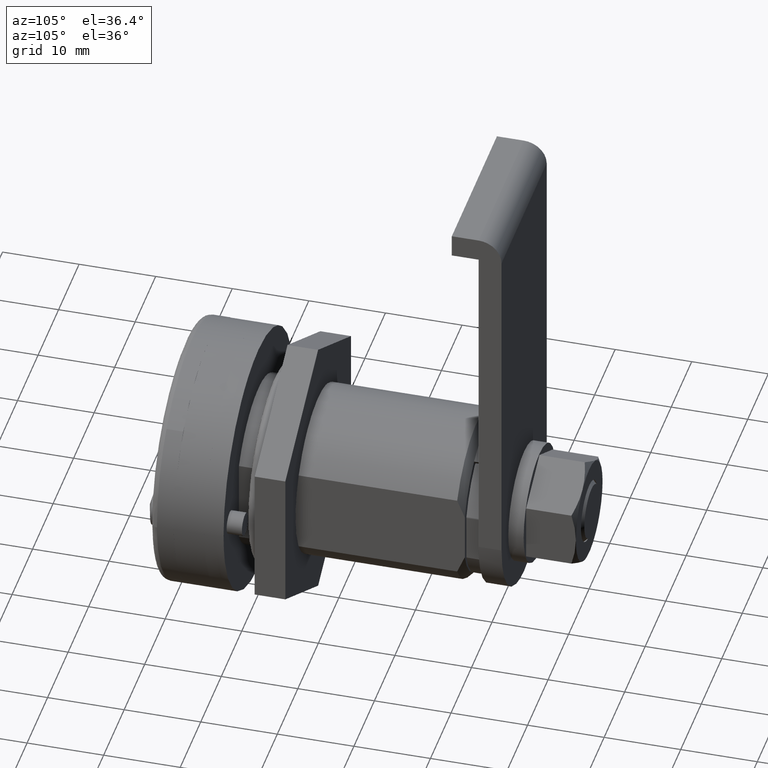
[diagram: clean part render]
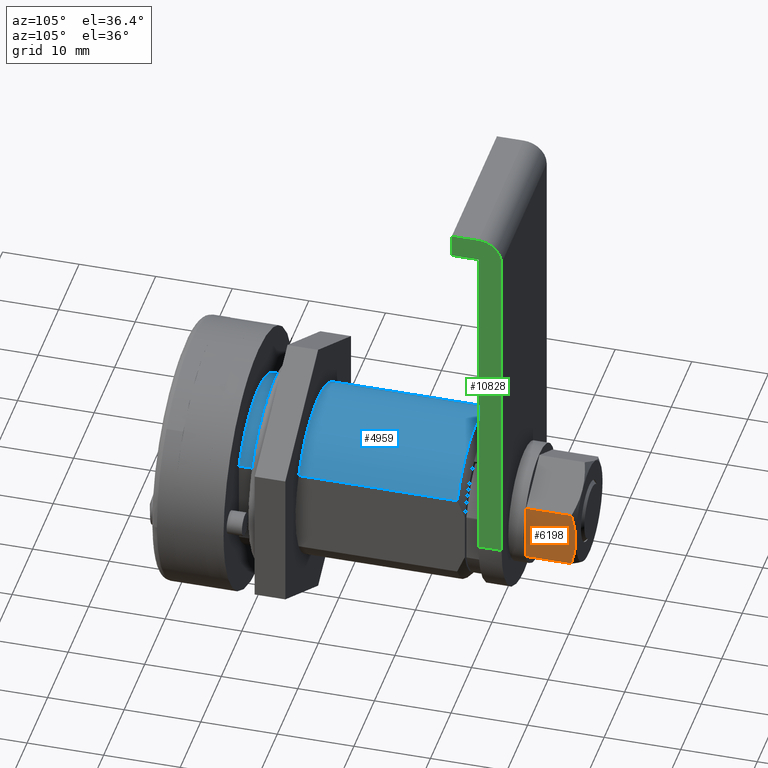
[diagram: same view with three faces highlighted in distinct colors, each labeled with its STEP entity id]
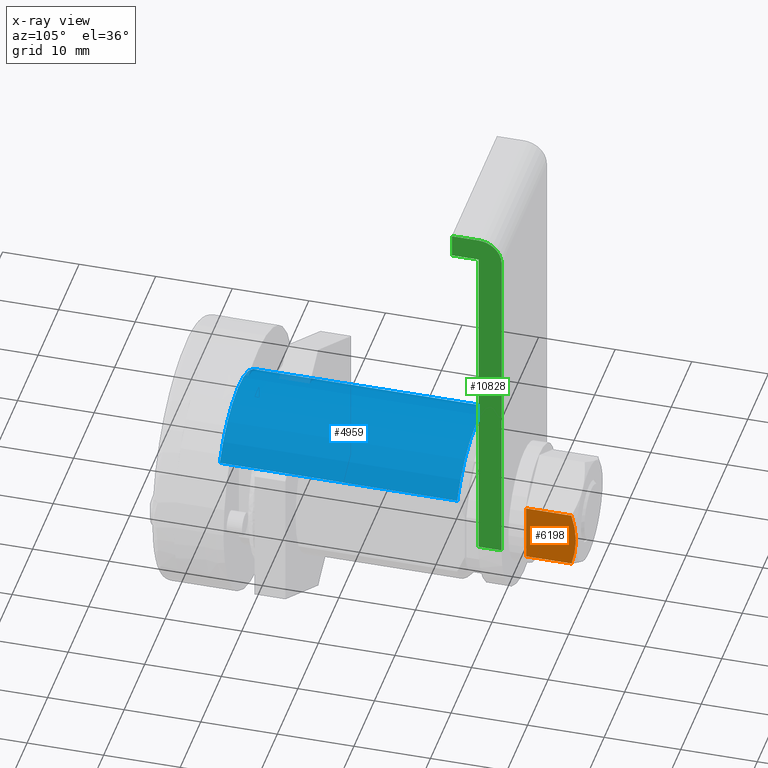
[diagram: x-ray of the same camera — body ghosted, the three highlighted faces saturated]
A machine part, auxiliary view with three faces highlighted in distinct colors.
The next image is the same camera in x-ray (body ghosted, the three faces saturated) — at least one of them is partly hidden behind the body in this view.
Their STEP definitions:

[orange] entity #6198 — the highlighted face is a freeform B-spline surface patch.
#6138=CARTESIAN_POINT('',(143.989442450064100,6.500000000000000,-4.127680304016882));
#6139=CARTESIAN_POINT('',(143.989442450064100,6.500000000000000,4.127680438226672));
#6140=CARTESIAN_POINT('',(151.138792407450410,6.500000000000000,-4.127680304016882));
#6141=CARTESIAN_POINT('',(151.138792407450410,6.500000000000000,4.127680438226672));
#6142=B_SPLINE_SURFACE_WITH_KNOTS('',1,1,((#6138,#6140),(#6139,#6141)),.UNSPECIFIED.,.F.,.F.,.U.,(2,2),(2,2),(0.0,8.255360742243553),(0.0,7.149349957386363),.UNSPECIFIED.);
#6143=CARTESIAN_POINT('',(150.233557999999990,6.500000000000000,-3.752777750802180));
#6144=VERTEX_POINT('',#6143);
#6145=CARTESIAN_POINT('',(144.314114000000190,6.500000000000000,-3.752777750802180));
#6146=VERTEX_POINT('',#6145);
#6147=CARTESIAN_POINT('',(150.233557999999990,6.500000000000000,-3.752777750802180));
#6148=CARTESIAN_POINT('',(144.314114000000190,6.500000000000000,-3.752777750802180));
#6149=QUASI_UNIFORM_CURVE('',1,(#6147,#6148),.UNSPECIFIED.,.F.,.U.);
#6150=EDGE_CURVE('',#6144,#6146,#6149,.T.);
#6151=ORIENTED_EDGE('',*,*,#6150,.T.);
#6152=CARTESIAN_POINT('',(144.314114000000190,6.500000000000000,3.752777750802180));
#6153=VERTEX_POINT('',#6152);
#6154=CARTESIAN_POINT('',(144.314114000000190,6.500000000000000,3.752777750802180));
#6155=CARTESIAN_POINT('',(144.314114000000190,6.500000000000000,-3.752777750802180));
#6156=QUASI_UNIFORM_CURVE('',1,(#6154,#6155),.UNSPECIFIED.,.F.,.U.);
#6157=EDGE_CURVE('',#6153,#6146,#6156,.T.);
#6158=ORIENTED_EDGE('',*,*,#6157,.F.);
#6159=CARTESIAN_POINT('',(150.233557999999990,6.500000000000000,3.752777750802180));
#6160=VERTEX_POINT('',#6159);
#6161=CARTESIAN_POINT('',(144.314114000000190,6.500000000000000,3.752777750802180));
#6162=CARTESIAN_POINT('',(150.233557999999990,6.500000000000000,3.752777750802180));
#6163=QUASI_UNIFORM_CURVE('',1,(#6161,#6162),.UNSPECIFIED.,.F.,.U.);
#6164=EDGE_CURVE('',#6153,#6160,#6163,.T.);
#6165=ORIENTED_EDGE('',*,*,#6164,.T.);
#6166=CARTESIAN_POINT('',(150.814113999999990,6.500000000000000,0.0));
#6167=VERTEX_POINT('',#6166);
#6168=CARTESIAN_POINT('',(150.233557999999990,6.500000000000000,3.752777750802181));
#6169=CARTESIAN_POINT('',(150.408674805001110,6.500000000000002,3.146154553361802));
#6170=CARTESIAN_POINT('',(150.554520571445010,6.500000000000002,2.531576793084169));
#6171=CARTESIAN_POINT('',(150.681696388338510,6.500000000000001,1.748372339393276));
#6172=CARTESIAN_POINT('',(150.704363904598410,6.500000000000001,1.590979325600957));
#6173=CARTESIAN_POINT('',(150.743688341121410,6.499999999999999,1.274559886087574));
#6174=CARTESIAN_POINT('',(150.760364058523410,6.500000000000000,1.115289408062347));
#6175=CARTESIAN_POINT('',(150.800575123010900,6.499999999999999,0.636498015691341));
#6176=CARTESIAN_POINT('',(150.814082090743310,6.499999999999999,0.318306407611531));
#6177=CARTESIAN_POINT('',(150.814113981076190,6.499999999999999,0.000753747530037));
#6178=CARTESIAN_POINT('',(150.814113999906310,6.499999999999999,0.000376873171072));
#6179=CARTESIAN_POINT('',(150.814113999999990,6.500000000000000,0.0));
#6180=B_SPLINE_CURVE_WITH_KNOTS('',3,(#6168,#6169,#6170,#6171,#6172,#6173,#6174,#6175,#6176,#6177,#6178,#6179),.UNSPECIFIED.,.F.,.U.,(4,2,2,2,2,4),(0.499851472034087,0.749851472034085,0.812351472034085,0.874851472034086,0.999851472034086,1.0),.UNSPECIFIED.);
#6181=EDGE_CURVE('',#6160,#6167,#6180,.T.);
#6182=ORIENTED_EDGE('',*,*,#6181,.T.);
#6183=CARTESIAN_POINT('',(150.814113999999990,6.500000000000000,0.0));
#6184=CARTESIAN_POINT('',(150.814113842906690,6.500000000000000,-0.316796498233197));
#6185=CARTESIAN_POINT('',(150.800676602585100,6.499999999999999,-0.632580039716546));
#6186=CARTESIAN_POINT('',(150.748214584528510,6.499999999999999,-1.262595074961939));
#6187=CARTESIAN_POINT('',(150.709178364919810,6.499999999999999,-1.576825706176442));
#6188=CARTESIAN_POINT('',(150.608140554119700,6.499999999999999,-2.203555720271551));
#6189=CARTESIAN_POINT('',(150.546129722446810,6.499999999999999,-2.516191645315884));
#6190=CARTESIAN_POINT('',(150.402583474666700,6.500000000000001,-3.139432060341156));
#6191=CARTESIAN_POINT('',(150.321681881054500,6.500000000000002,-3.447507274357849));
#6192=CARTESIAN_POINT('',(150.233557999999990,6.500000000000000,-3.752777750802191));
#6193=B_SPLINE_CURVE_WITH_KNOTS('',3,(#6183,#6184,#6185,#6186,#6187,#6188,#6189,#6190,#6191,#6192),.UNSPECIFIED.,.F.,.U.,(4,2,2,2,4),(0.0,0.124851472003408,0.249851472003408,0.374851472003409,0.499851472003409),.UNSPECIFIED.);
#6194=EDGE_CURVE('',#6167,#6144,#6193,.T.);
#6195=ORIENTED_EDGE('',*,*,#6194,.T.);
#6196=EDGE_LOOP('',(#6151,#6158,#6165,#6182,#6195));
#6197=FACE_OUTER_BOUND('',#6196,.T.);
#6198=ADVANCED_FACE('',(#6197),#6142,.T.);

[blue] entity #4959 — the highlighted face is a freeform B-spline surface patch.
#2723=CARTESIAN_POINT('',(7.000000000000110,9.500000000000000,-5.545268253204710));
#2724=VERTEX_POINT('',#2723);
#2759=CARTESIAN_POINT('',(38.0,9.500000000000000,-5.545268253204710));
#2760=VERTEX_POINT('',#2759);
#2774=CARTESIAN_POINT('',(7.000000000000110,9.500000000000000,-5.545268253204710));
#2775=CARTESIAN_POINT('',(38.0,9.500000000000000,-5.545268253204710));
#2776=QUASI_UNIFORM_CURVE('',1,(#2774,#2775),.UNSPECIFIED.,.F.,.U.);
#2777=EDGE_CURVE('',#2724,#2760,#2776,.T.);
#2787=CARTESIAN_POINT('',(7.000000000000110,-9.500000000000000,-5.545268253204710));
#2788=VERTEX_POINT('',#2787);
#2789=CARTESIAN_POINT('',(38.0,-9.500000000000000,-5.545268253204710));
#2790=VERTEX_POINT('',#2789);
#2791=CARTESIAN_POINT('',(7.000000000000110,-9.500000000000000,-5.545268253204710));
#2792=CARTESIAN_POINT('',(38.0,-9.500000000000000,-5.545268253204710));
#2793=QUASI_UNIFORM_CURVE('',1,(#2791,#2792),.UNSPECIFIED.,.F.,.U.);
#2794=EDGE_CURVE('',#2788,#2790,#2793,.T.);
#4653=CARTESIAN_POINT('',(7.000000000000110,9.500000000000000,-5.545268253204710));
#4654=CARTESIAN_POINT('',(7.000000000000091,9.078638960692722,-6.267466205500437));
#4655=CARTESIAN_POINT('',(7.000000000000145,8.268141610157768,-7.350204135204740));
#4656=CARTESIAN_POINT('',(7.000000000000091,6.926102078029165,-8.588323657599252));
#4657=CARTESIAN_POINT('',(7.000000000000165,5.455301818219346,-9.618241442538322));
#4658=CARTESIAN_POINT('',(7.000000000000034,3.984588672897981,-10.302912574940830));
#4659=CARTESIAN_POINT('',(7.000000000000185,2.232638982529533,-10.808458143211130));
#4660=CARTESIAN_POINT('',(7.000000000000068,0.510736781778090,-11.055614828996401));
#4661=CARTESIAN_POINT('',(7.000000000000042,-1.497153807962886,-10.957373644241031));
#4662=CARTESIAN_POINT('',(7.000000000000243,-3.277390556785309,-10.544145652487190));
#4663=CARTESIAN_POINT('',(7.000000000000012,-5.168772035516814,-9.791821457233121));
#4664=CARTESIAN_POINT('',(7.000000000000116,-6.988453967163331,-8.614763136216538));
#4665=CARTESIAN_POINT('',(7.000000000000131,-8.517270951648488,-7.046203368623143));
#4666=CARTESIAN_POINT('',(7.000000000000151,-9.229054862145464,-6.009481176822947));
#4667=CARTESIAN_POINT('',(7.000000000000110,-9.500000000000000,-5.545268253204710));
#4668=B_SPLINE_CURVE_WITH_KNOTS('',3,(#4653,#4654,#4655,#4656,#4657,#4658,#4659,#4660,#4661,#4662,#4663,#4664,#4665,#4666,#4667),.UNSPECIFIED.,.F.,.U.,(4,1,1,1,1,1,1,1,1,1,1,1,4),(0.000000205677566,2.508347442642815,4.031297681107716,5.464677119275240,7.883496407019775,8.868940322402086,10.929419291523169,13.079363701014680,14.871078633814630,16.394021271619760,19.171178102247559,21.321220516704031,22.933722752308132),.UNSPECIFIED.);
#4669=EDGE_CURVE('',#2724,#2788,#4668,.T.);
#4876=CARTESIAN_POINT('',(38.0,9.500000000000000,-5.545268253204710));
#4877=CARTESIAN_POINT('',(37.999999999999901,9.078655501174147,-6.267478359660163));
#4878=CARTESIAN_POINT('',(38.000000000000227,8.268127027559697,-7.350193204001062));
#4879=CARTESIAN_POINT('',(37.999999999999908,6.926113577542185,-8.588346137602844));
#4880=CARTESIAN_POINT('',(37.999999999999773,5.626861744302544,-9.497996622558370));
#4881=CARTESIAN_POINT('',(38.000000000000767,4.233763651181702,-10.195533911630701));
#4882=CARTESIAN_POINT('',(37.999999999999261,2.584907661417678,-10.737599409096619));
#4883=CARTESIAN_POINT('',(38.000000000000178,0.928187060558761,-11.009858854304710));
#4884=CARTESIAN_POINT('',(38.0,-0.868309358328465,-11.009838462881049));
#4885=CARTESIAN_POINT('',(38.000000000000327,-2.644473352611180,-10.732833359128040));
#4886=CARTESIAN_POINT('',(37.999999999999410,-4.348736756014714,-10.157076615557431));
#4887=CARTESIAN_POINT('',(37.999999999999609,-6.199537515622397,-9.173351694563959));
#4888=CARTESIAN_POINT('',(38.000000000001293,-7.994749625879573,-7.709304835495203));
#4889=CARTESIAN_POINT('',(37.999999999998572,-9.063584701945223,-6.293247469124331));
#4890=CARTESIAN_POINT('',(38.0,-9.500000000000000,-5.545268253204710));
#4891=B_SPLINE_CURVE_WITH_KNOTS('',3,(#4876,#4877,#4878,#4879,#4880,#4881,#4882,#4883,#4884,#4885,#4886,#4887,#4888,#4889,#4890),.UNSPECIFIED.,.F.,.U.,(4,1,1,1,1,1,1,1,1,1,1,1,4),(0.000000205677566,2.508347442642815,4.031297681107716,5.464677119275240,7.256386585719874,8.689772448151876,10.660632417316680,12.273100241552379,14.064797113575031,16.035685723547729,17.648222042592771,20.335787104139161,22.933722752308132),.UNSPECIFIED.);
#4892=EDGE_CURVE('',#2760,#2790,#4891,.T.);
#4939=CARTESIAN_POINT('',(38.774999999999999,-9.691854799601508,-5.202686858099492));
#4940=CARTESIAN_POINT('',(6.205625000000115,-9.691854799601508,-5.202686858099492));
#4941=CARTESIAN_POINT('',(38.775000000000013,0.518993084958139,-24.224022905627926));
#4942=CARTESIAN_POINT('',(6.205625000000115,0.518993084958139,-24.224022905627926));
#4943=CARTESIAN_POINT('',(38.774999999999999,9.905791403179476,-4.782812632405276));
#4944=CARTESIAN_POINT('',(6.205625000000115,9.905791403179476,-4.782812632405276));
#4952=(BOUNDED_SURFACE()B_SPLINE_SURFACE(1,2,((#4939,#4941,#4943),(#4940,#4942,#4944)),.UNSPECIFIED.,.F.,.F.,.U.)B_SPLINE_SURFACE_WITH_KNOTS((2,2),(3,3),(0.0,32.569374999999887),(0.0,26.963234678157001),.UNSPECIFIED.)GEOMETRIC_REPRESENTATION_ITEM()RATIONAL_B_SPLINE_SURFACE(((1.0,0.453990499739547,1.0),(1.0,0.453990499739547,1.0)))REPRESENTATION_ITEM('')SURFACE());
#4953=ORIENTED_EDGE('',*,*,#4669,.F.);
#4954=ORIENTED_EDGE('',*,*,#2777,.T.);
#4955=ORIENTED_EDGE('',*,*,#4892,.T.);
#4956=ORIENTED_EDGE('',*,*,#2794,.F.);
#4957=EDGE_LOOP('',(#4953,#4954,#4955,#4956));
#4958=FACE_OUTER_BOUND('',#4957,.T.);
#4959=ADVANCED_FACE('',(#4958),#4952,.T.);

[green] entity #10828 — the highlighted face is a freeform B-spline surface patch.
#10692=CARTESIAN_POINT('',(127.435711000000200,1.387779E-014,11.0));
#10693=VERTEX_POINT('',#10692);
#10748=CARTESIAN_POINT('',(130.435711000000200,1.387779E-014,11.0));
#10749=VERTEX_POINT('',#10748);
#10765=CARTESIAN_POINT('',(127.435711000000200,1.387779E-014,11.0));
#10766=CARTESIAN_POINT('',(130.435711000000200,1.387779E-014,11.0));
#10767=QUASI_UNIFORM_CURVE('',1,(#10765,#10766),.UNSPECIFIED.,.F.,.U.);
#10768=EDGE_CURVE('',#10693,#10749,#10767,.T.);
#10773=CARTESIAN_POINT('',(123.611039731928300,50.397599906966697,11.0));
#10774=CARTESIAN_POINT('',(130.760389881075410,50.397599906966697,11.0));
#10775=CARTESIAN_POINT('',(123.611039731928300,-2.397601194426993,11.0));
#10776=CARTESIAN_POINT('',(130.760389881075410,-2.397601194426993,11.0));
#10777=B_SPLINE_SURFACE_WITH_KNOTS('',1,1,((#10773,#10775),(#10774,#10776)),.UNSPECIFIED.,.F.,.F.,.U.,(2,2),(2,2),(0.0,7.149350149147068),(0.0,52.795201101393687),.UNSPECIFIED.);
#10778=CARTESIAN_POINT('',(127.435711000000200,45.0,11.0));
#10779=VERTEX_POINT('',#10778);
#10780=CARTESIAN_POINT('',(127.435711000000200,1.387779E-014,11.0));
#10781=CARTESIAN_POINT('',(127.435711000000200,45.0,11.0));
#10782=QUASI_UNIFORM_CURVE('',1,(#10780,#10781),.UNSPECIFIED.,.F.,.U.);
#10783=EDGE_CURVE('',#10693,#10779,#10782,.T.);
#10784=ORIENTED_EDGE('',*,*,#10783,.F.);
#10785=ORIENTED_EDGE('',*,*,#10768,.T.);
#10786=CARTESIAN_POINT('',(130.435711000000200,45.0,11.0));
#10787=VERTEX_POINT('',#10786);
#10788=CARTESIAN_POINT('',(130.435711000000200,45.0,11.0));
#10789=CARTESIAN_POINT('',(130.435711000000200,1.387779E-014,11.0));
#10790=QUASI_UNIFORM_CURVE('',1,(#10788,#10789),.UNSPECIFIED.,.F.,.U.);
#10791=EDGE_CURVE('',#10787,#10749,#10790,.T.);
#10792=ORIENTED_EDGE('',*,*,#10791,.F.);
#10793=CARTESIAN_POINT('',(127.435711000000200,48.0,11.0));
#10794=VERTEX_POINT('',#10793);
#10795=CARTESIAN_POINT('',(130.435711000000200,45.0,11.0));
#10796=CARTESIAN_POINT('',(130.435931416480090,45.343641486488302,11.0));
#10797=CARTESIAN_POINT('',(130.337642017056110,45.907982819332808,11.0));
#10798=CARTESIAN_POINT('',(130.001776520790490,46.595907690990479,11.0));
#10799=CARTESIAN_POINT('',(129.622464043038290,47.081959145498928,11.000000000000011));
#10800=CARTESIAN_POINT('',(129.174264729430690,47.468542533445977,11.0));
#10801=CARTESIAN_POINT('',(128.466195054729210,47.869868148481949,11.0));
#10802=CARTESIAN_POINT('',(127.853063277252200,48.000541391777517,11.0));
#10803=CARTESIAN_POINT('',(127.435711000000200,48.0,11.0));
#10804=B_SPLINE_CURVE_WITH_KNOTS('',3,(#10795,#10796,#10797,#10798,#10799,#10800,#10801,#10802,#10803),.UNSPECIFIED.,.F.,.U.,(4,1,1,1,1,1,4),(0.000000163986023,1.030860374869354,1.693561803434384,2.282638650776629,2.871663778034888,3.460746236683164,4.712507233010378),.UNSPECIFIED.);
#10805=EDGE_CURVE('',#10787,#10794,#10804,.T.);
#10806=ORIENTED_EDGE('',*,*,#10805,.T.);
#10807=CARTESIAN_POINT('',(123.935711000000200,48.0,11.0));
#10808=VERTEX_POINT('',#10807);
#10809=CARTESIAN_POINT('',(123.935711000000200,48.0,11.0));
#10810=CARTESIAN_POINT('',(127.435711000000200,48.0,11.0));
#10811=QUASI_UNIFORM_CURVE('',1,(#10809,#10810),.UNSPECIFIED.,.F.,.U.);
#10812=EDGE_CURVE('',#10808,#10794,#10811,.T.);
#10813=ORIENTED_EDGE('',*,*,#10812,.F.);
#10814=CARTESIAN_POINT('',(123.935711000000200,45.0,11.0));
#10815=VERTEX_POINT('',#10814);
#10816=CARTESIAN_POINT('',(123.935711000000200,45.0,11.0));
#10817=CARTESIAN_POINT('',(123.935711000000200,48.0,11.0));
#10818=QUASI_UNIFORM_CURVE('',1,(#10816,#10817),.UNSPECIFIED.,.F.,.U.);
#10819=EDGE_CURVE('',#10815,#10808,#10818,.T.);
#10820=ORIENTED_EDGE('',*,*,#10819,.F.);
#10821=CARTESIAN_POINT('',(127.435711000000200,45.0,11.0));
#10822=CARTESIAN_POINT('',(123.935711000000200,45.0,11.0));
#10823=QUASI_UNIFORM_CURVE('',1,(#10821,#10822),.UNSPECIFIED.,.F.,.U.);
#10824=EDGE_CURVE('',#10779,#10815,#10823,.T.);
#10825=ORIENTED_EDGE('',*,*,#10824,.F.);
#10826=EDGE_LOOP('',(#10784,#10785,#10792,#10806,#10813,#10820,#10825));
#10827=FACE_OUTER_BOUND('',#10826,.T.);
#10828=ADVANCED_FACE('',(#10827),#10777,.F.);